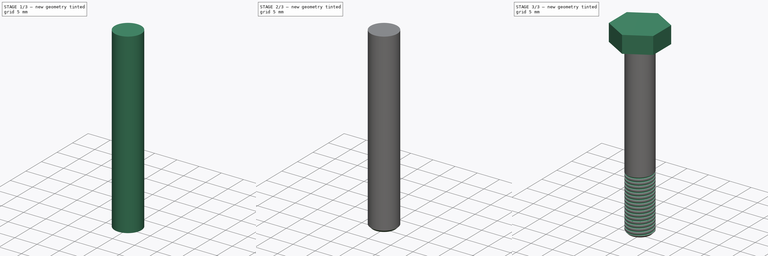
[diagram: build sequence overview — one tinted view per stage of 3, left to right]
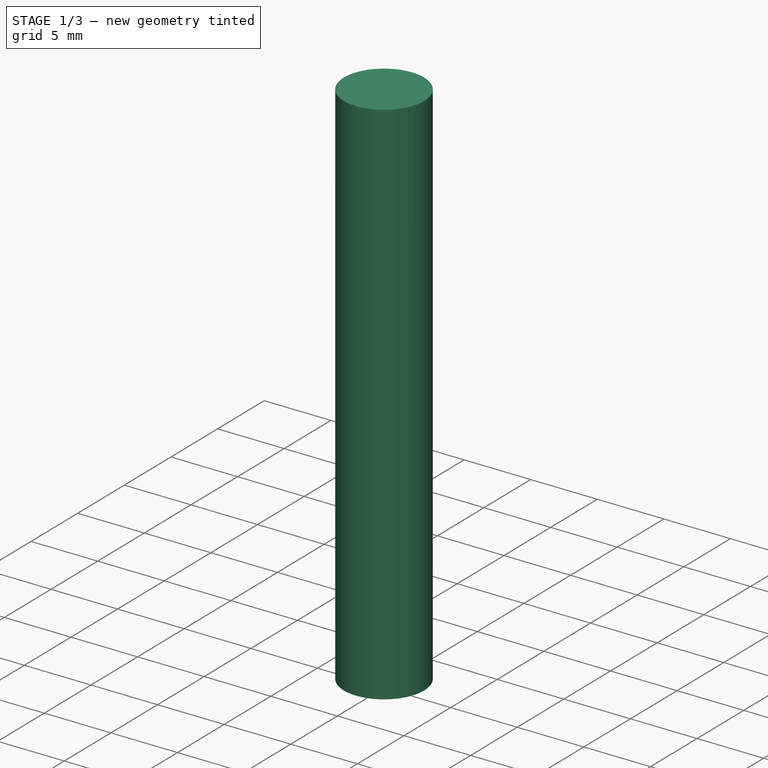
[diagram: stage 1 of 3 — iso view after this stage's code; geometry added in this stage tinted green]
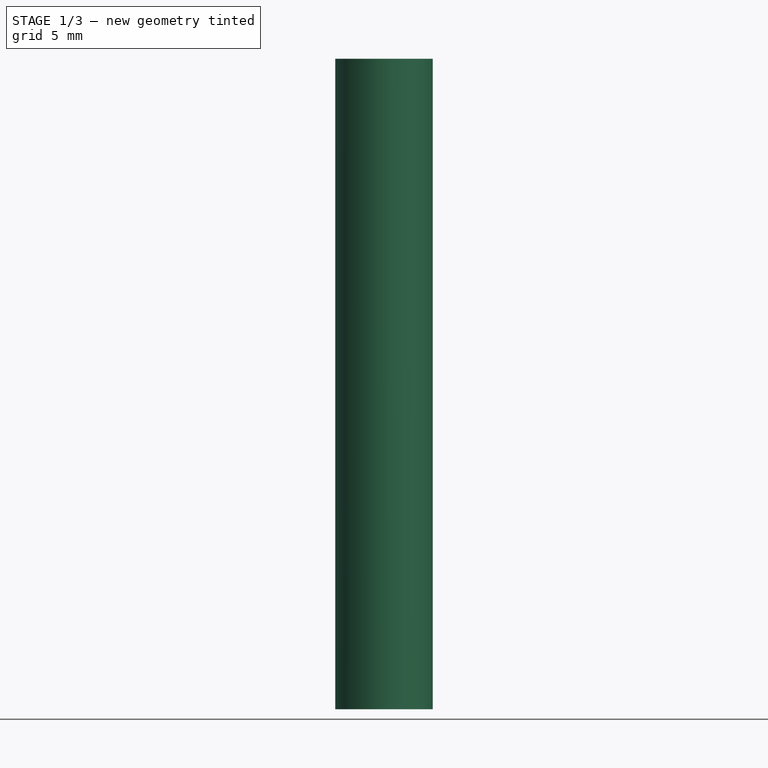
[diagram: stage 1 of 3 — front view after this stage's code; geometry added in this stage tinted green]
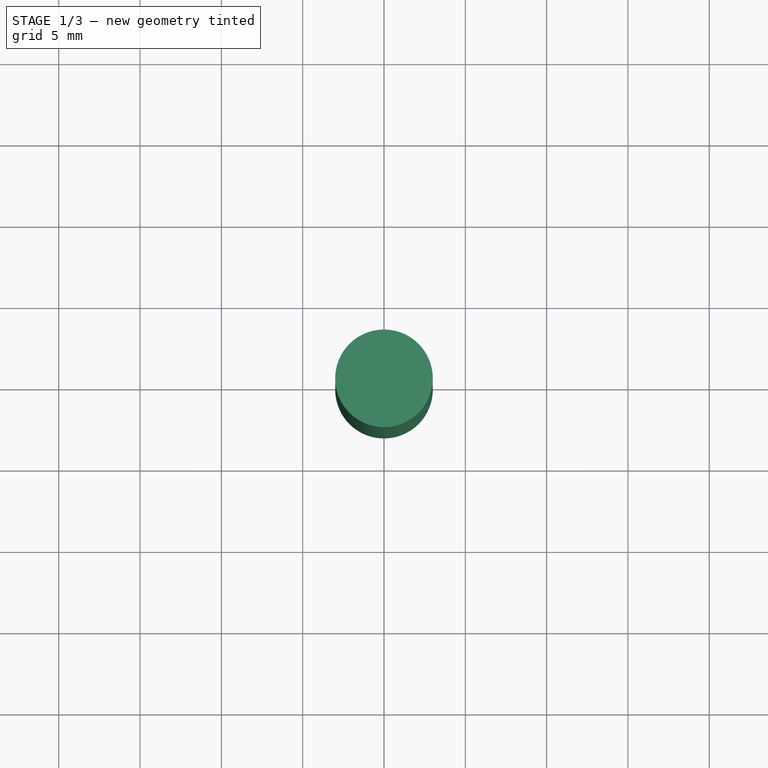
[diagram: stage 1 of 3 — top view after this stage's code; geometry added in this stage tinted green]
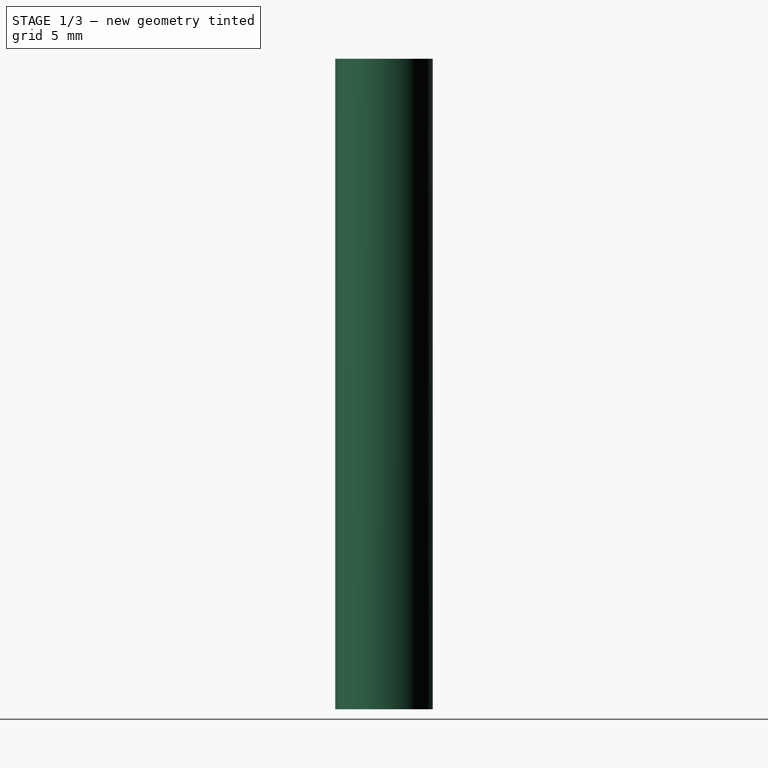
[diagram: stage 1 of 3 — right view after this stage's code; geometry added in this stage tinted green]
FCSTD DOCUMENT  (FreeCAD 0.19R24291 (Git))
Label: Rod
License: All rights reserved
LicenseURL: http://en.wikipedia.org/wiki/All_rights_reserved
objects: Sketcher::SketchObject×2, Part::Cylinder×1, PartDesign::FeatureBase×1, PartDesign::Chamfer×1, Part::Helix×1, PartDesign::ShapeBinder×1, PartDesign::SubtractivePipe×1, PartDesign::Pad×1, PartDesign::Body×1
note: 13 computed .brp shape members not serialized (recipe doc carries the construction recipe); baked Part::Feature solids carry a one-line shape summary decoded from their .brp

FEATURE [Part::Cylinder] Cylinder
  Angle = 360
  AttacherType = Attacher::AttachEngine3D
  Height = 40
  Radius = 3
FEATURE [PartDesign::FeatureBase] BaseFeature
  BaseFeature = -> Cylinder
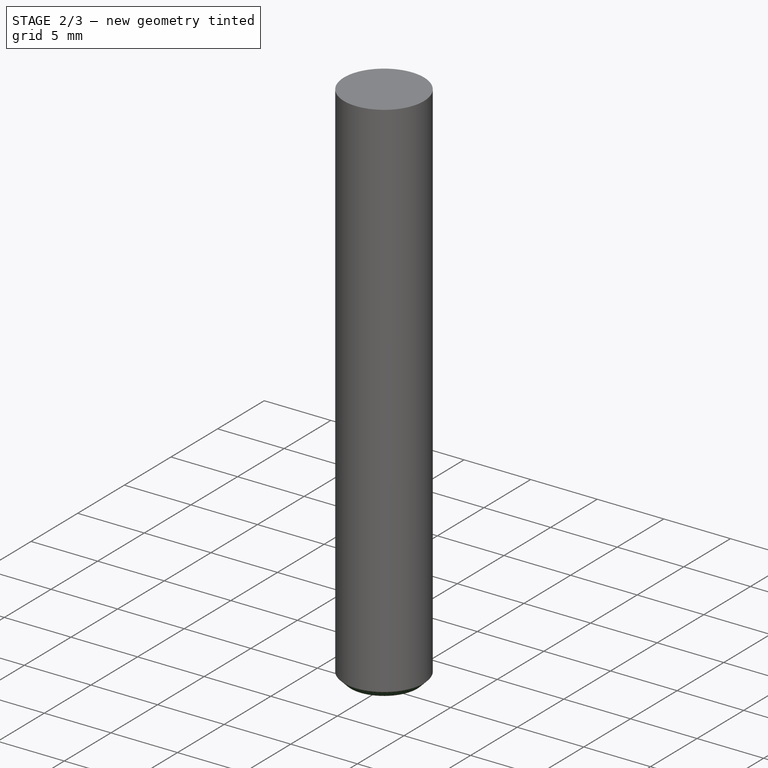
[diagram: stage 2 of 3 — iso view after this stage's code; geometry added in this stage tinted green]
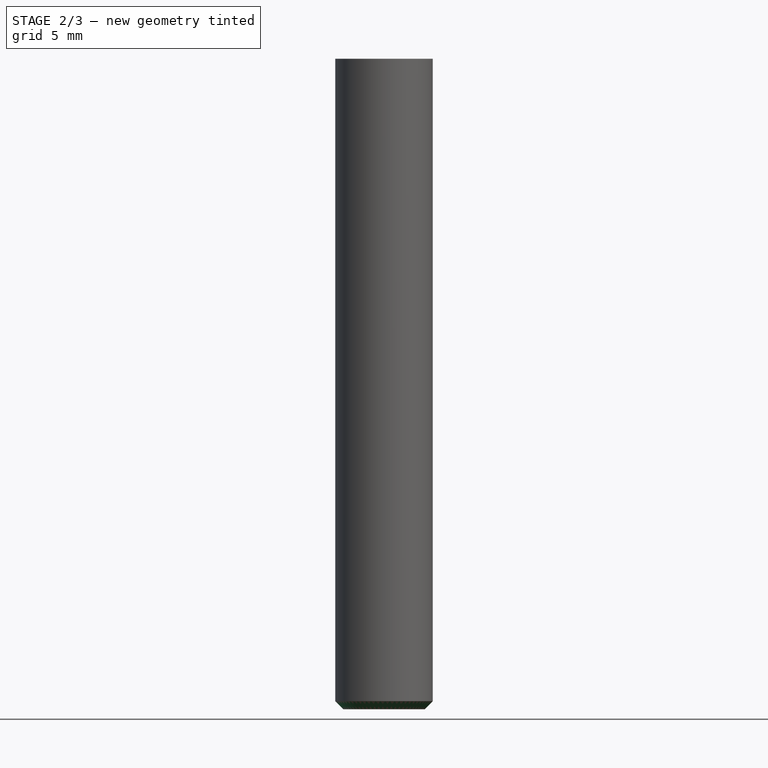
[diagram: stage 2 of 3 — front view after this stage's code; geometry added in this stage tinted green]
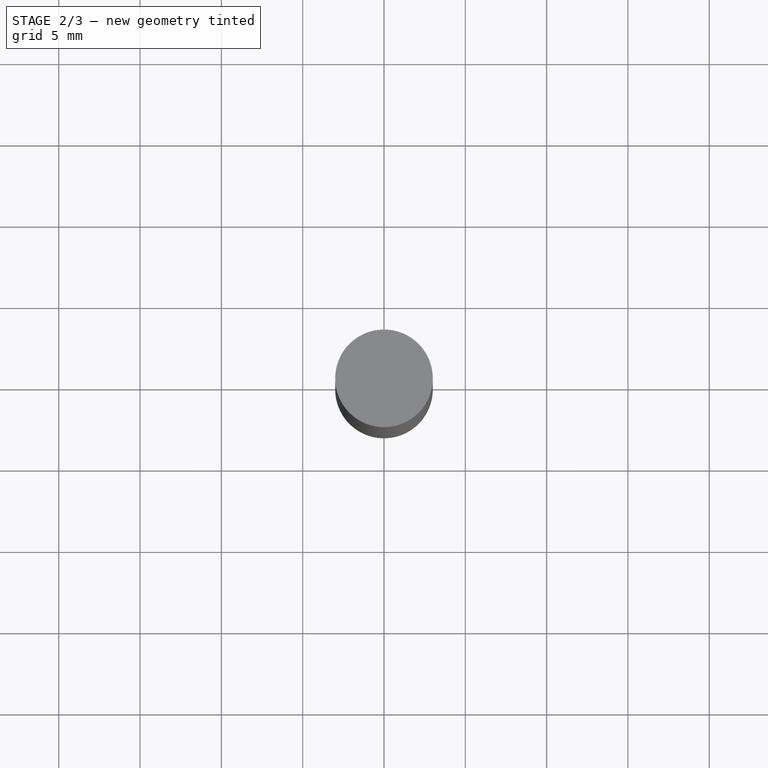
[diagram: stage 2 of 3 — top view after this stage's code; geometry added in this stage tinted green]
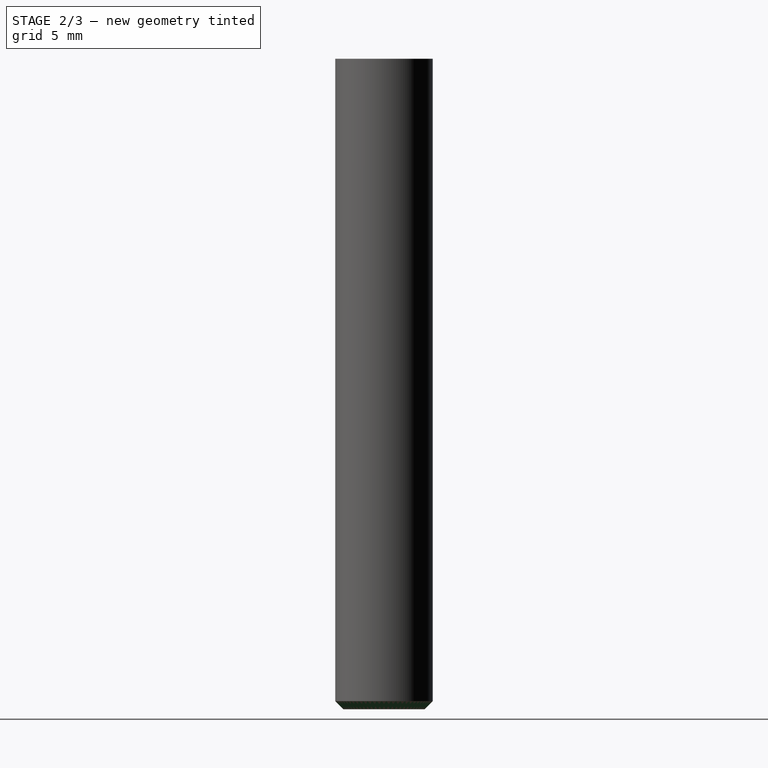
[diagram: stage 2 of 3 — right view after this stage's code; geometry added in this stage tinted green]
FEATURE [PartDesign::Chamfer] Chamfer
  Angle = 45
  Base = -> BaseFeature [Face3]
  BaseFeature = -> BaseFeature
  ChamferType = 0
  FlipDirection = false
  Size = 0.5
  Size2 = 1
  SupportTransform = false
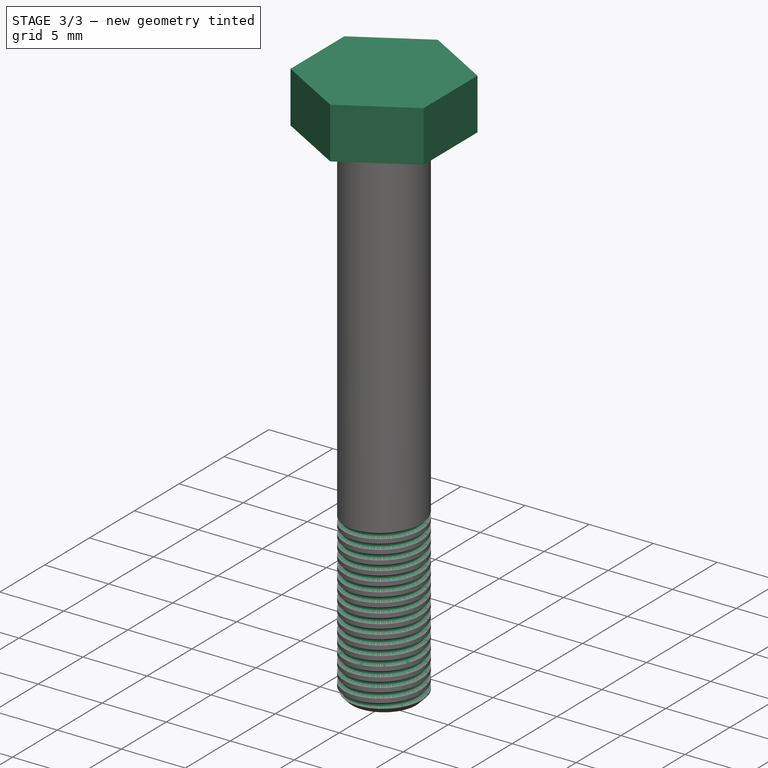
[diagram: stage 3 of 3 — iso view after this stage's code; geometry added in this stage tinted green]
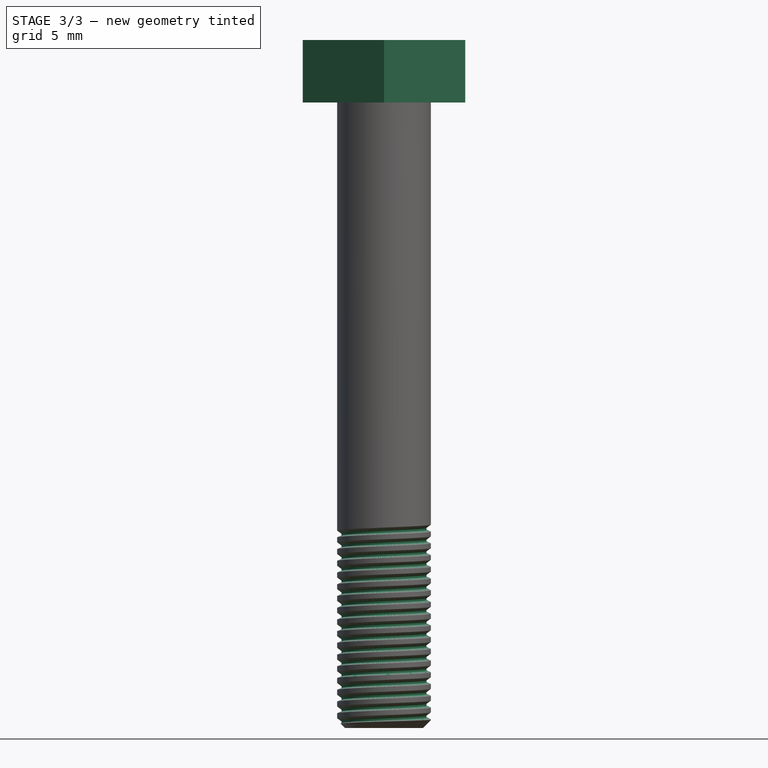
[diagram: stage 3 of 3 — front view after this stage's code; geometry added in this stage tinted green]
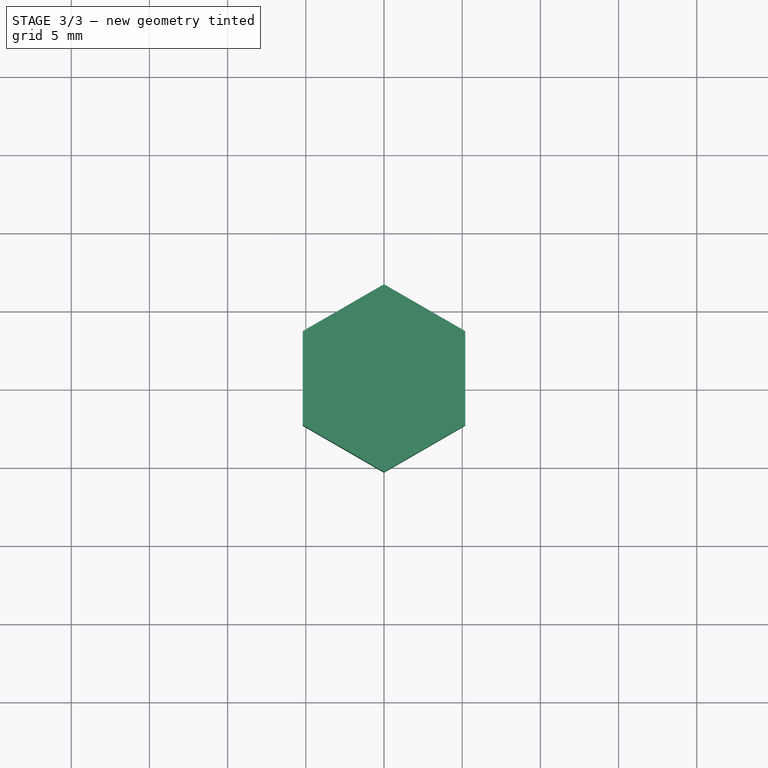
[diagram: stage 3 of 3 — top view after this stage's code; geometry added in this stage tinted green]
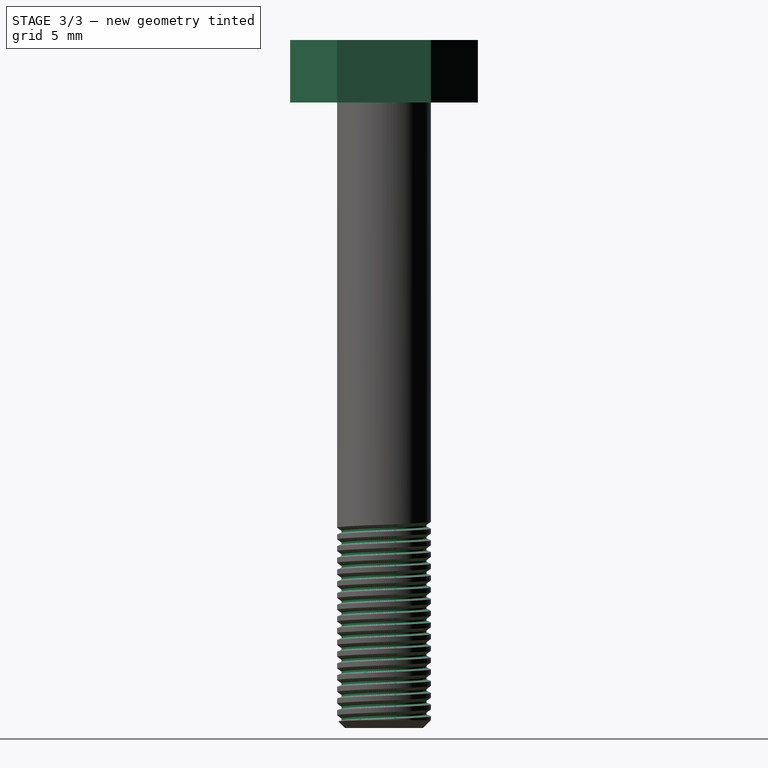
[diagram: stage 3 of 3 — right view after this stage's code; geometry added in this stage tinted green]
FEATURE [Part::Helix] Helix
  Angle = 0
  AttacherType = Attacher::AttachEngine3D
  Height = 13
  LocalCoord = 0
  Pitch = 0.75
  Radius = 3
  Style = 1
FEATURE [PartDesign::ShapeBinder] ShapeBinder
  Support = -> [Helix]
  TraceSupport = false
FEATURE [Sketcher::SketchObject] Sketch
  FullyConstrained = false
  MapMode = 5
  Placement = pos=(0,0,0) rot=(1,0,0;1.5708rad)
  Support = -> [XZ_Plane]
  sketch-geometry (4):
    g0: LineSegment StartX=3.01359 StartY=0.266356 StartZ=0 EndX=3.01359 EndY=-0.192488 EndZ=0
    g1: LineSegment StartX=3.01359 StartY=-0.192488 StartZ=0 EndX=2.72063 EndY=-0.065031 EndZ=0
    g2: LineSegment StartX=2.72063 StartY=-0.065031 StartZ=0 EndX=2.72063 EndY=0.04968 EndZ=0
    g3: LineSegment StartX=2.72063 StartY=0.04968 StartZ=0 EndX=3.01359 EndY=0.266356 EndZ=0
  constraints (7):
    c: Vertical(g0)
    c: Coincident(g0,g1)
    c: Coincident(g1,g2)
    c: Vertical(g2)
    c: Coincident(g2,g3)
    c: Coincident(g3,g0)
    c: Angle(g1,g3) = 1.0472
FEATURE [PartDesign::SubtractivePipe] SubtractivePipe
  AuxilleryCurvelinear = true
  AuxillerySpineTangent = false
  BaseFeature = -> Chamfer
  Binormal = (0,0,0)
  Mode = 2
  Profile = -> Sketch
  Spine = -> ShapeBinder
  SpineTangent = false
  Transformation = 0
  Transition = 0
FEATURE [Sketcher::SketchObject] Sketch001
  FullyConstrained = true
  MapMode = 5
  Placement = pos=(0,0,40) rot=(0,0,1;0rad)
  Support = -> [SubtractivePipe]
  sketch-geometry (7):
    g0: LineSegment StartX=0 StartY=6 StartZ=0 EndX=-5.19615 EndY=3 EndZ=0
    g1: LineSegment StartX=-5.19615 StartY=3 StartZ=0 EndX=-5.19615 EndY=-3 EndZ=0
    g2: LineSegment StartX=-5.19615 StartY=-3 StartZ=0 EndX=0 EndY=-6 EndZ=0
    g3: LineSegment StartX=0 StartY=-6 StartZ=0 EndX=5.19615 EndY=-3 EndZ=0
    g4: LineSegment StartX=5.19615 StartY=-3 StartZ=0 EndX=5.19615 EndY=3 EndZ=0
    g5: LineSegment StartX=5.19615 StartY=3 StartZ=0 EndX=0 EndY=6 EndZ=0
    g6: Circle CenterX=0 CenterY=0 CenterZ=0 NormalX=0 NormalY=0 NormalZ=1 AngleXU=0 Radius=6
  constraints (16):
    c: Coincident(g0,g1)
    c: Coincident(g1,g2)
    c: Coincident(g2,g3)
    c: Coincident(g3,g4)
    c: Coincident(g4,g5)
    c: Coincident(g5,g0)
    c: Equal(g0, g1-g5) x5
    c: PointOnObject(g0,g6)
    c: PointOnObject(g1,g6)
    c: PointOnObject(g2,g6)
    c: PointOnObject(g3,g6)
    c: PointOnObject(g4,g6)
    c: PointOnObject(g5,g6)
    c: Coincident(g6,g-1)
    c: PointOnObject(g5,g-2)
    c: DistanceY(g2,g0) = 12
FEATURE [PartDesign::Pad] Pad
  BaseFeature = -> SubtractivePipe
  Direction = (1,1,1)
  Length = 4
  Length2 = 100
  Profile = -> Sketch001
  Type = 0
FEATURE [PartDesign::Body] Body
  BaseFeature = -> Cylinder
  Group = -> [BaseFeature,Chamfer,ShapeBinder,Sketch,SubtractivePipe,Sketch001,Pad]
  Origin = -> Origin
  Tip = -> Pad
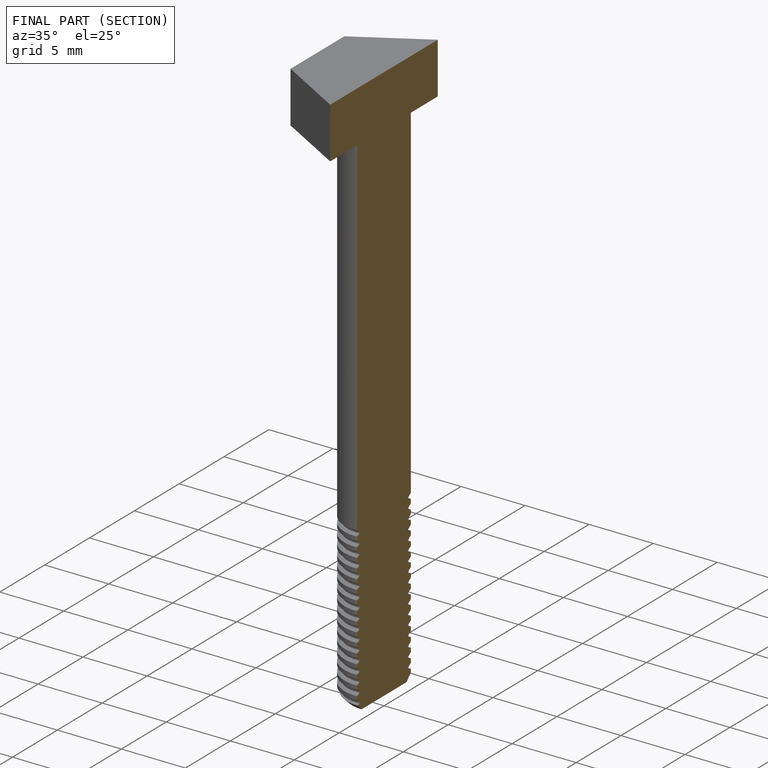
[diagram: finished part — half-section view (interior)]
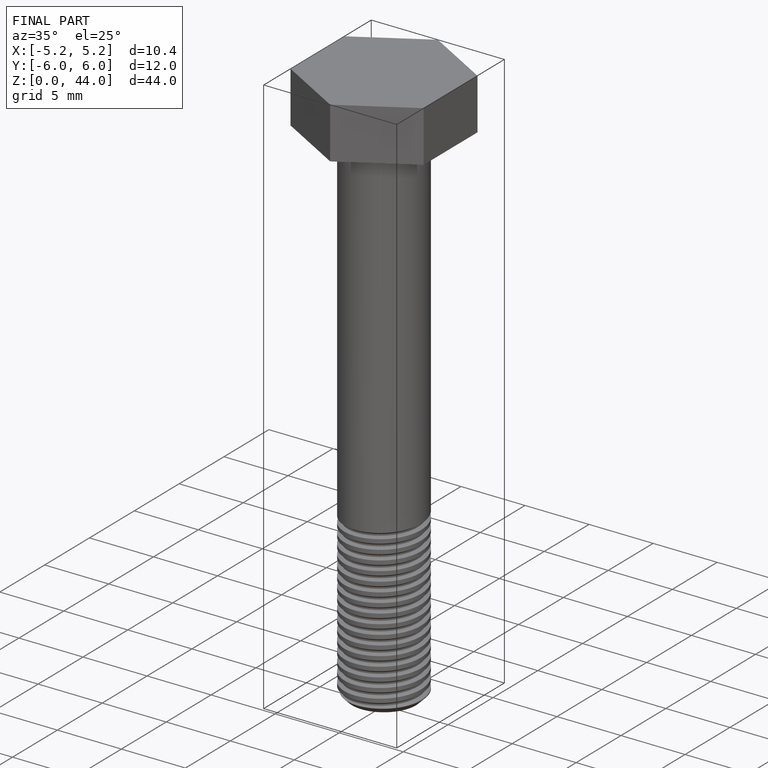
[diagram: finished part — iso view with bounding-box wireframe]
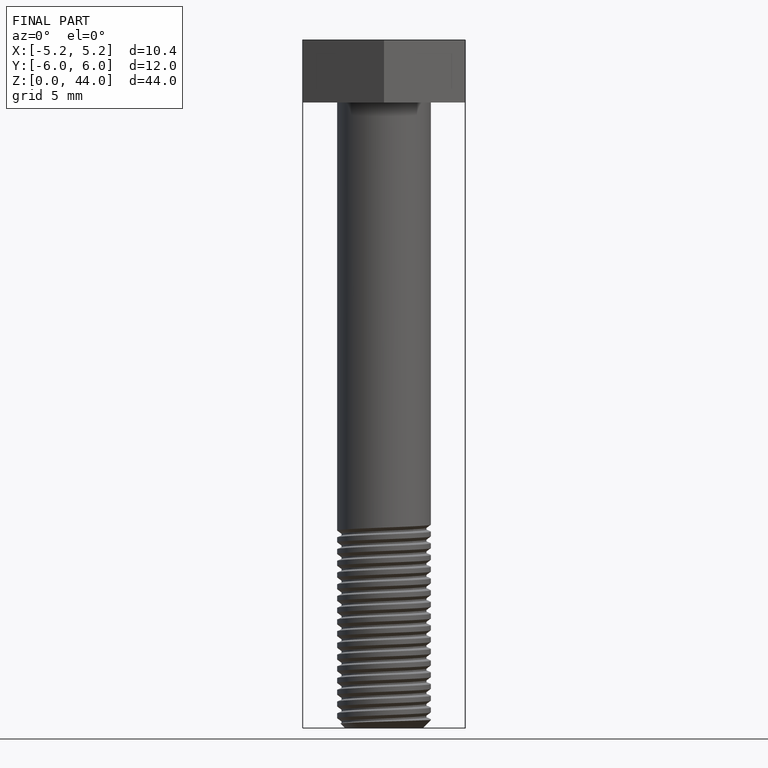
[diagram: finished part — front view with bounding-box wireframe]
